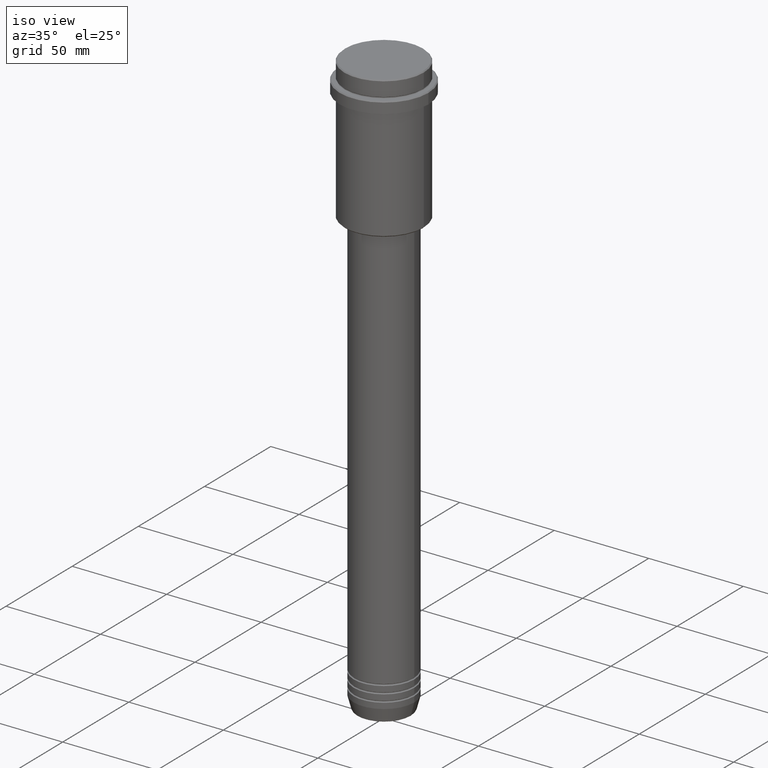
[diagram: clean part render]
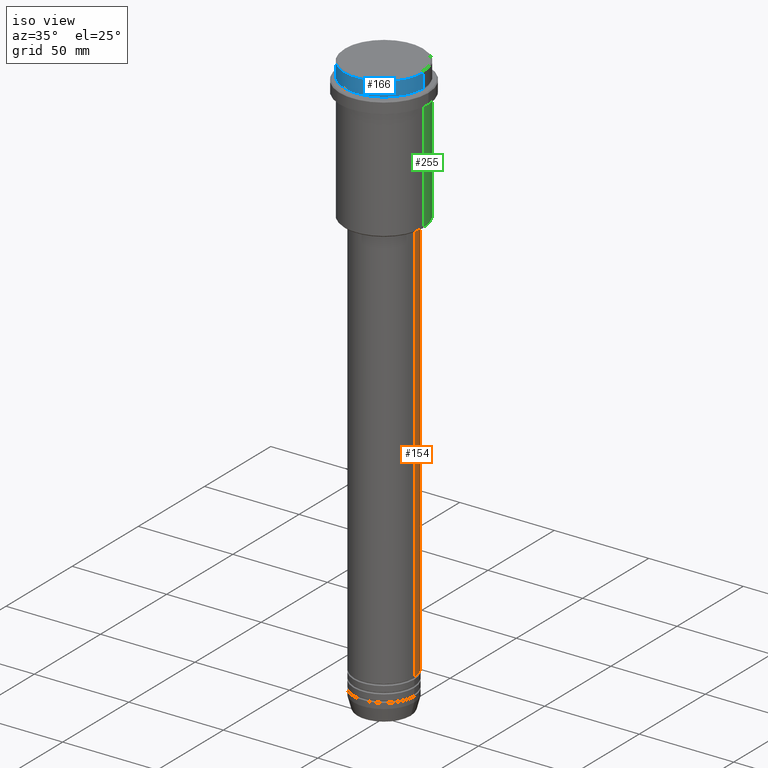
[diagram: same view with three faces highlighted in distinct colors, each labeled with its STEP entity id]
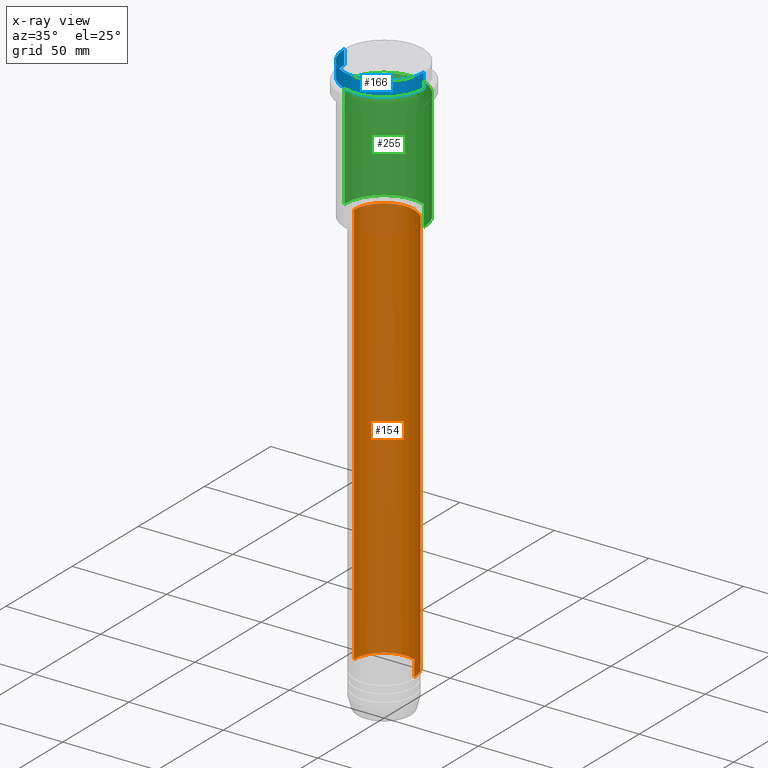
[diagram: x-ray of the same camera — body ghosted, the three highlighted faces saturated]
A machine part, iso view with three faces highlighted in distinct colors.
The next image is the same camera in x-ray (body ghosted, the three faces saturated) — at least one of them is partly hidden behind the body in this view.
Their STEP definitions:

[orange] entity #154 — the highlighted cylindrical surface (partial cylindrical patch) has radius 16 mm, axis along (-0, -0, 1).
#88 = VERTEX_POINT ( 'NONE', #782 ) ;
#99 = CARTESIAN_POINT ( 'NONE',  ( 0.000000000000000000, 0.000000000000000000, -290.9999999999998863 ) ) ;
#101 = DIRECTION ( 'NONE',  ( -0.000000000000000000, -0.000000000000000000, 1.000000000000000000 ) ) ;
#135 = ORIENTED_EDGE ( 'NONE', *, *, #1380, .F. ) ;
#154 = ADVANCED_FACE ( 'NONE', ( #489 ), #474, .T. ) ;
#218 = CARTESIAN_POINT ( 'NONE',  ( 16.00000000000000000, 0.000000000000000000, 0.000000000000000000 ) ) ;
#222 = CARTESIAN_POINT ( 'NONE',  ( -16.00000000000000000, 1.959434878635765131E-15, -290.9999999999998863 ) ) ;
#254 = DIRECTION ( 'NONE',  ( -0.000000000000000000, -0.000000000000000000, 1.000000000000000000 ) ) ;
#407 = VERTEX_POINT ( 'NONE', #222 ) ;
#474 = CYLINDRICAL_SURFACE ( 'NONE', #920, 16.00000000000000000 ) ;
#489 = FACE_OUTER_BOUND ( 'NONE', #694, .T. ) ;
#496 = EDGE_CURVE ( 'NONE', #502, #88, #1099, .T. ) ;
#502 = VERTEX_POINT ( 'NONE', #887 ) ;
#535 = DIRECTION ( 'NONE',  ( 1.000000000000000000, 0.000000000000000000, 0.000000000000000000 ) ) ;
#598 = AXIS2_PLACEMENT_3D ( 'NONE', #99, #1072, #535 ) ;
#658 = DIRECTION ( 'NONE',  ( -0.000000000000000000, -0.000000000000000000, 1.000000000000000000 ) ) ;
#694 = EDGE_LOOP ( 'NONE', ( #1290, #1103, #703, #135 ) ) ;
#703 = ORIENTED_EDGE ( 'NONE', *, *, #496, .F. ) ;
#782 = CARTESIAN_POINT ( 'NONE',  ( -16.00000000000000355, 1.959434878635765526E-15, -75.99999999999992895 ) ) ;
#800 = VERTEX_POINT ( 'NONE', #980 ) ;
#870 = DIRECTION ( 'NONE',  ( 1.000000000000000000, 0.000000000000000000, 0.000000000000000000 ) ) ;
#887 = CARTESIAN_POINT ( 'NONE',  ( 16.00000000000000355, 0.000000000000000000, -75.99999999999992895 ) ) ;
#920 = AXIS2_PLACEMENT_3D ( 'NONE', #1351, #254, #1046 ) ;
#925 = AXIS2_PLACEMENT_3D ( 'NONE', #1310, #101, #870 ) ;
#950 = CIRCLE ( 'NONE', #598, 16.00000000000000000 ) ;
#977 = LINE ( 'NONE', #1286, #1019 ) ;
#980 = CARTESIAN_POINT ( 'NONE',  ( 16.00000000000000000, 0.000000000000000000, -290.9999999999998863 ) ) ;
#997 = DIRECTION ( 'NONE',  ( -0.000000000000000000, -0.000000000000000000, 1.000000000000000000 ) ) ;
#1019 = VECTOR ( 'NONE', #658, 1000.000000000000000 ) ;
#1046 = DIRECTION ( 'NONE',  ( 1.000000000000000000, 0.000000000000000000, 0.000000000000000000 ) ) ;
#1072 = DIRECTION ( 'NONE',  ( -0.000000000000000000, -0.000000000000000000, 1.000000000000000000 ) ) ;
#1099 = CIRCLE ( 'NONE', #925, 16.00000000000000355 ) ;
#1103 = ORIENTED_EDGE ( 'NONE', *, *, #1294, .T. ) ;
#1169 = VECTOR ( 'NONE', #997, 1000.000000000000000 ) ;
#1286 = CARTESIAN_POINT ( 'NONE',  ( -16.00000000000000000, 1.959434878635765131E-15, 0.000000000000000000 ) ) ;
#1290 = ORIENTED_EDGE ( 'NONE', *, *, #1336, .T. ) ;
#1294 = EDGE_CURVE ( 'NONE', #407, #88, #977, .T. ) ;
#1307 = LINE ( 'NONE', #218, #1169 ) ;
#1310 = CARTESIAN_POINT ( 'NONE',  ( 0.000000000000000000, 0.000000000000000000, -75.99999999999992895 ) ) ;
#1336 = EDGE_CURVE ( 'NONE', #800, #407, #950, .T. ) ;
#1351 = CARTESIAN_POINT ( 'NONE',  ( 0.000000000000000000, 0.000000000000000000, 0.000000000000000000 ) ) ;
#1380 = EDGE_CURVE ( 'NONE', #800, #502, #1307, .T. ) ;

[blue] entity #166 — the highlighted cylindrical surface (partial cylindrical patch) has radius 21 mm, axis along (-0, -0, 1).
#56 = DIRECTION ( 'NONE',  ( 1.000000000000000000, 0.000000000000000000, 0.000000000000000000 ) ) ;
#65 = CARTESIAN_POINT ( 'NONE',  ( 0.000000000000000000, 0.000000000000000000, -0.4999999999999518718 ) ) ;
#103 = CARTESIAN_POINT ( 'NONE',  ( 20.99999999999999645, 0.000000000000000000, -7.999999999999998224 ) ) ;
#124 = DIRECTION ( 'NONE',  ( -0.000000000000000000, -0.000000000000000000, 1.000000000000000000 ) ) ;
#166 = ADVANCED_FACE ( 'NONE', ( #916 ), #244, .T. ) ;
#170 = CARTESIAN_POINT ( 'NONE',  ( 0.000000000000000000, 0.000000000000000000, -7.999999999999998224 ) ) ;
#197 = ORIENTED_EDGE ( 'NONE', *, *, #680, .T. ) ;
#209 = ORIENTED_EDGE ( 'NONE', *, *, #411, .T. ) ;
#244 = CYLINDRICAL_SURFACE ( 'NONE', #1340, 20.99999999999999645 ) ;
#260 = VERTEX_POINT ( 'NONE', #408 ) ;
#270 = VERTEX_POINT ( 'NONE', #827 ) ;
#408 = CARTESIAN_POINT ( 'NONE',  ( -20.99999999999999645, 2.571758278209441267E-15, -0.4999999999999518718 ) ) ;
#411 = EDGE_CURVE ( 'NONE', #1231, #1091, #1000, .T. ) ;
#415 = DIRECTION ( 'NONE',  ( 0.000000000000000000, 0.000000000000000000, -1.000000000000000000 ) ) ;
#487 = AXIS2_PLACEMENT_3D ( 'NONE', #170, #723, #56 ) ;
#556 = CARTESIAN_POINT ( 'NONE',  ( -20.99999999999999645, 2.571758278209441267E-15, 0.000000000000000000 ) ) ;
#566 = AXIS2_PLACEMENT_3D ( 'NONE', #65, #415, #629 ) ;
#568 = CIRCLE ( 'NONE', #566, 20.99999999999999645 ) ;
#629 = DIRECTION ( 'NONE',  ( 1.000000000000000000, 0.000000000000000000, 0.000000000000000000 ) ) ;
#666 = CARTESIAN_POINT ( 'NONE',  ( 20.99999999999999645, 0.000000000000000000, 0.000000000000000000 ) ) ;
#680 = EDGE_CURVE ( 'NONE', #1091, #260, #568, .T. ) ;
#684 = ORIENTED_EDGE ( 'NONE', *, *, #935, .F. ) ;
#723 = DIRECTION ( 'NONE',  ( -0.000000000000000000, -0.000000000000000000, 1.000000000000000000 ) ) ;
#765 = EDGE_LOOP ( 'NONE', ( #684, #1045, #209, #197 ) ) ;
#812 = LINE ( 'NONE', #556, #1058 ) ;
#827 = CARTESIAN_POINT ( 'NONE',  ( -20.99999999999999645, 2.571758278209441267E-15, -7.999999999999998224 ) ) ;
#855 = CIRCLE ( 'NONE', #487, 20.99999999999999645 ) ;
#916 = FACE_OUTER_BOUND ( 'NONE', #765, .T. ) ;
#926 = CARTESIAN_POINT ( 'NONE',  ( 0.000000000000000000, 0.000000000000000000, 0.000000000000000000 ) ) ;
#935 = EDGE_CURVE ( 'NONE', #270, #260, #812, .T. ) ;
#1000 = LINE ( 'NONE', #666, #1097 ) ;
#1045 = ORIENTED_EDGE ( 'NONE', *, *, #1115, .T. ) ;
#1048 = CARTESIAN_POINT ( 'NONE',  ( 20.99999999999999645, 0.000000000000000000, -0.4999999999999518718 ) ) ;
#1058 = VECTOR ( 'NONE', #1342, 1000.000000000000000 ) ;
#1091 = VERTEX_POINT ( 'NONE', #1048 ) ;
#1097 = VECTOR ( 'NONE', #124, 1000.000000000000000 ) ;
#1115 = EDGE_CURVE ( 'NONE', #270, #1231, #855, .T. ) ;
#1216 = DIRECTION ( 'NONE',  ( 1.000000000000000000, 0.000000000000000000, 0.000000000000000000 ) ) ;
#1231 = VERTEX_POINT ( 'NONE', #103 ) ;
#1337 = DIRECTION ( 'NONE',  ( -0.000000000000000000, -0.000000000000000000, 1.000000000000000000 ) ) ;
#1340 = AXIS2_PLACEMENT_3D ( 'NONE', #926, #1337, #1216 ) ;
#1342 = DIRECTION ( 'NONE',  ( -0.000000000000000000, -0.000000000000000000, 1.000000000000000000 ) ) ;

[green] entity #255 — the highlighted cylindrical surface (partial cylindrical patch) has radius 21 mm, axis along (-0, -0, 1).
#83 = DIRECTION ( 'NONE',  ( -1.000000000000000000, 0.000000000000000000, 0.000000000000000000 ) ) ;
#86 = DIRECTION ( 'NONE',  ( -0.000000000000000000, -0.000000000000000000, 1.000000000000000000 ) ) ;
#169 = FACE_OUTER_BOUND ( 'NONE', #913, .T. ) ;
#184 = ORIENTED_EDGE ( 'NONE', *, *, #1129, .T. ) ;
#190 = CARTESIAN_POINT ( 'NONE',  ( 0.000000000000000000, 0.000000000000000000, -74.50000000000002842 ) ) ;
#217 = CARTESIAN_POINT ( 'NONE',  ( -20.99999999999999645, 2.571758278209441267E-15, -16.00000000000000355 ) ) ;
#255 = ADVANCED_FACE ( 'NONE', ( #169 ), #1257, .T. ) ;
#303 = LINE ( 'NONE', #953, #1057 ) ;
#334 = CARTESIAN_POINT ( 'NONE',  ( 20.99999999999999645, 0.000000000000000000, -16.00000000000000355 ) ) ;
#370 = VERTEX_POINT ( 'NONE', #334 ) ;
#373 = CARTESIAN_POINT ( 'NONE',  ( -20.99999999999999645, 2.571758278209441267E-15, -74.50000000000002842 ) ) ;
#406 = CARTESIAN_POINT ( 'NONE',  ( 20.99999999999999645, 0.000000000000000000, -74.50000000000002842 ) ) ;
#458 = ORIENTED_EDGE ( 'NONE', *, *, #507, .F. ) ;
#468 = ORIENTED_EDGE ( 'NONE', *, *, #1373, .T. ) ;
#499 = VERTEX_POINT ( 'NONE', #217 ) ;
#507 = EDGE_CURVE ( 'NONE', #370, #499, #1256, .T. ) ;
#520 = CARTESIAN_POINT ( 'NONE',  ( 0.000000000000000000, 0.000000000000000000, 0.000000000000000000 ) ) ;
#673 = VERTEX_POINT ( 'NONE', #406 ) ;
#683 = AXIS2_PLACEMENT_3D ( 'NONE', #520, #86, #741 ) ;
#689 = VECTOR ( 'NONE', #1142, 1000.000000000000000 ) ;
#709 = AXIS2_PLACEMENT_3D ( 'NONE', #758, #994, #771 ) ;
#718 = LINE ( 'NONE', #1376, #689 ) ;
#741 = DIRECTION ( 'NONE',  ( 1.000000000000000000, 0.000000000000000000, 0.000000000000000000 ) ) ;
#743 = EDGE_CURVE ( 'NONE', #673, #370, #303, .T. ) ;
#758 = CARTESIAN_POINT ( 'NONE',  ( 0.000000000000000000, 0.000000000000000000, -16.00000000000000355 ) ) ;
#771 = DIRECTION ( 'NONE',  ( 1.000000000000000000, 0.000000000000000000, 0.000000000000000000 ) ) ;
#884 = DIRECTION ( 'NONE',  ( -0.000000000000000000, -0.000000000000000000, 1.000000000000000000 ) ) ;
#913 = EDGE_LOOP ( 'NONE', ( #468, #184, #458, #1315 ) ) ;
#953 = CARTESIAN_POINT ( 'NONE',  ( 20.99999999999999645, 0.000000000000000000, 0.000000000000000000 ) ) ;
#992 = AXIS2_PLACEMENT_3D ( 'NONE', #190, #884, #83 ) ;
#994 = DIRECTION ( 'NONE',  ( -0.000000000000000000, -0.000000000000000000, 1.000000000000000000 ) ) ;
#1008 = VERTEX_POINT ( 'NONE', #373 ) ;
#1042 = CIRCLE ( 'NONE', #992, 20.99999999999999645 ) ;
#1057 = VECTOR ( 'NONE', #1062, 1000.000000000000000 ) ;
#1062 = DIRECTION ( 'NONE',  ( -0.000000000000000000, -0.000000000000000000, 1.000000000000000000 ) ) ;
#1129 = EDGE_CURVE ( 'NONE', #1008, #499, #718, .T. ) ;
#1142 = DIRECTION ( 'NONE',  ( -0.000000000000000000, -0.000000000000000000, 1.000000000000000000 ) ) ;
#1256 = CIRCLE ( 'NONE', #709, 20.99999999999999645 ) ;
#1257 = CYLINDRICAL_SURFACE ( 'NONE', #683, 20.99999999999999645 ) ;
#1315 = ORIENTED_EDGE ( 'NONE', *, *, #743, .F. ) ;
#1373 = EDGE_CURVE ( 'NONE', #673, #1008, #1042, .T. ) ;
#1376 = CARTESIAN_POINT ( 'NONE',  ( -20.99999999999999645, 2.571758278209441267E-15, 0.000000000000000000 ) ) ;